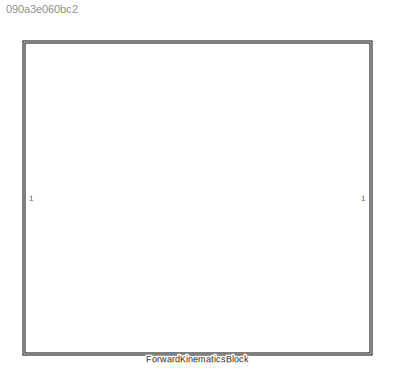
MODEL slx_090a3e060bc2
KIND model
CONFIG AbsTol = auto
CONFIG EnableMultiTasking = off
CONFIG FixedStep = auto
CONFIG MaxStep = auto
CONFIG MinStep = auto
CONFIG RelTol = 1e-3
CONFIG SampleTimeConstraint = Unconstrained
CONFIG SolverName = VariableStepAuto
CONFIG StartTime = 0.0
CONFIG StopTime = 10.0
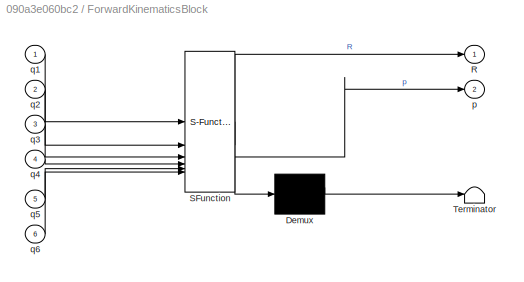
BLOCK [SubSystem] ForwardKinematicsBlock
  ErrorFcn = Stateflow.Translate.translate
  PermitHierarchicalResolution = ExplicitOnly
  SFBlockType = MATLAB Function
  TreatAsAtomicUnit = on
BLOCK [Demux] ForwardKinematicsBlock/ Demux 
  Outputs = 1
BLOCK [S-Function] ForwardKinematicsBlock/ SFunction 
  EnableBusSupport = off
  FunctionName = sf_sfun
  PortCounts = [6 3]
  SFcnIsStateOwnerBlock = off
  SFunctionDeploymentMode = off
  Tag = Stateflow S-Function 2
BLOCK [Terminator] ForwardKinematicsBlock/ Terminator 
BLOCK [Outport] ForwardKinematicsBlock/R
BLOCK [Outport] ForwardKinematicsBlock/p
  Port = 2
BLOCK [Inport] ForwardKinematicsBlock/q1
BLOCK [Inport] ForwardKinematicsBlock/q2
  Port = 2
BLOCK [Inport] ForwardKinematicsBlock/q3
  Port = 3
BLOCK [Inport] ForwardKinematicsBlock/q4
  Port = 4
BLOCK [Inport] ForwardKinematicsBlock/q5
  Port = 5
BLOCK [Inport] ForwardKinematicsBlock/q6
  Port = 6
CHART ForwardKinematicsBlock states=1 transitions=1
  STATE_LABEL 'eML_blk_kernel()'
  STATE_LABEL 'SCRIPT:\nfunction [R, p] = ForwardKinematics(q1, q2, q3, q4, q5, q6)\n% Entradas: q1...q6 (ângulos das juntas em rad)\n% Saídas:\n%   R - matriz de rotação 3x3\n%   p - vetor posição 3x1\n\n% Parâmetros DH: [d, theta, a, alpha, offset]\nDH = [ 0     q1  0     pi/2      pi/2;\n       0     q2  0    -pi/2      pi/2;\n       0.4   q3  0     pi/2      pi/2;\n       0     q4  0.1   pi/2     -pi/2;\n       0.5   q5...<+589ch>'
CHART  states=0 transitions=0
